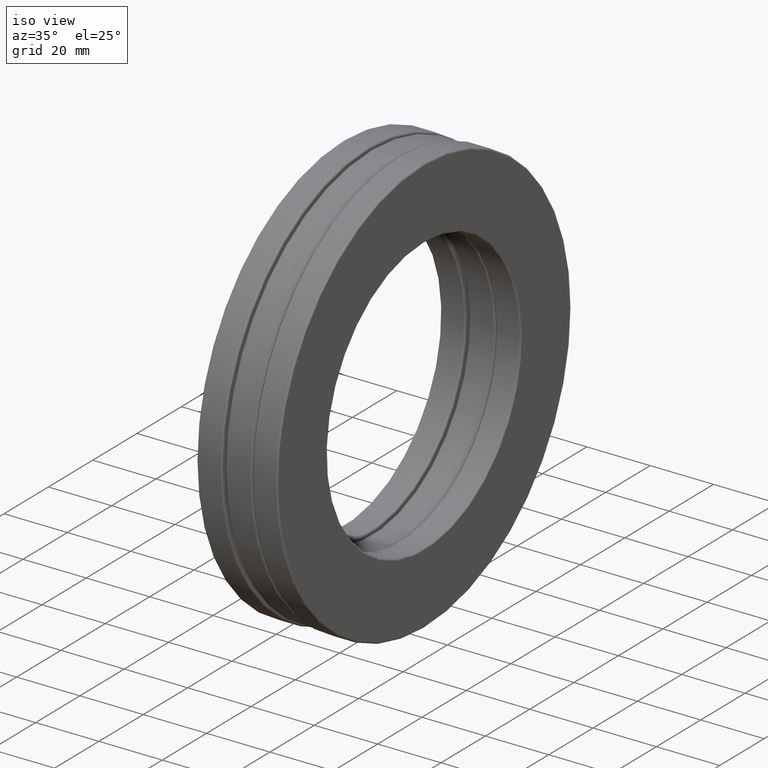
[diagram: clean part render]
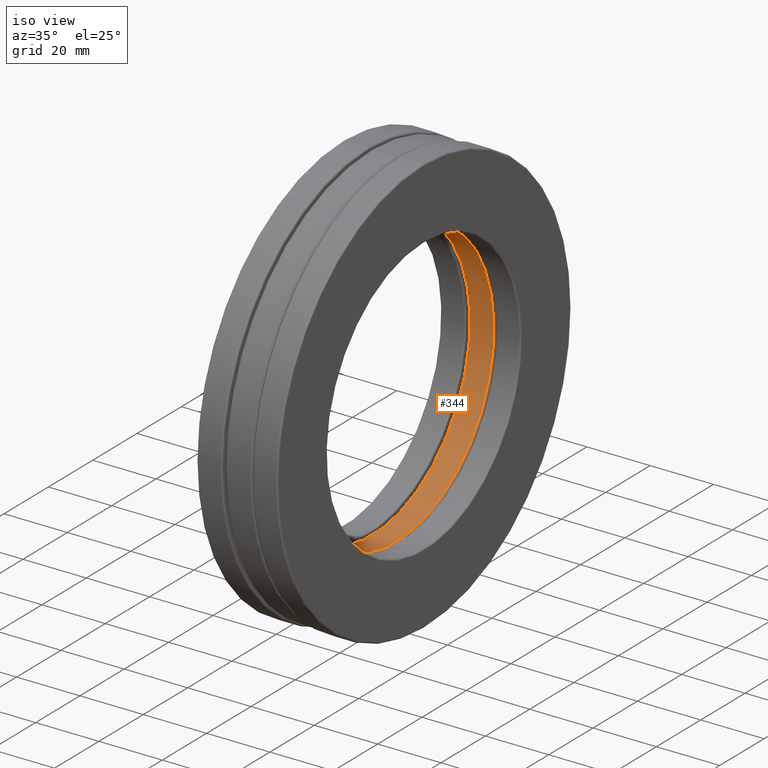
[diagram: same view with one face highlighted and labeled with its STEP entity id]
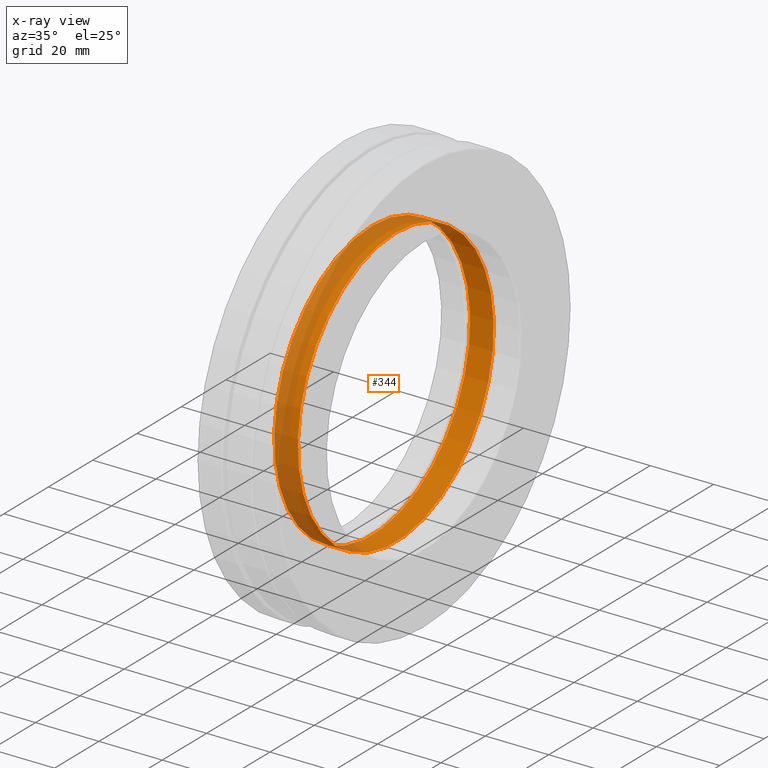
[diagram: x-ray of the same camera — body ghosted, the highlighted face saturated]
A machine part, iso view. The second image highlights one B-rep face of the part: STEP entity #344.
The next image is the same camera in x-ray: the body ghosted, the highlighted face saturated — about 36% of this face is hidden behind the body in this view.
In plain terms, the highlighted cylindrical surface (bore or boss wall) has radius 44.1643 mm, axis along (-1, -0, -0).
Its self-contained STEP definition (entity closure, byte-faithful):
#66 = CYLINDRICAL_SURFACE ( 'NONE', #1400, 1.738750000000000200 ) ;
#101 = CIRCLE ( 'NONE', #1258, 1.738750000000000200 ) ;
#235 = DIRECTION ( 'NONE',  ( 0.0000000000000000000, 0.0000000000000000000, 1.000000000000000000 ) ) ;
#344 = ADVANCED_FACE ( 'NONE', ( #1294, #993 ), #66, .F. ) ;
#358 = EDGE_CURVE ( 'NONE', #501, #501, #101, .T. ) ;
#363 = DIRECTION ( 'NONE',  ( -1.000000000000000000, -0.0000000000000000000, -0.0000000000000000000 ) ) ;
#477 = VERTEX_POINT ( 'NONE', #1262 ) ;
#501 = VERTEX_POINT ( 'NONE', #766 ) ;
#588 = ORIENTED_EDGE ( 'NONE', *, *, #1456, .F. ) ;
#702 = CARTESIAN_POINT ( 'NONE',  ( -0.1475000000000000800, 0.0000000000000000000, 0.0000000000000000000 ) ) ;
#717 = AXIS2_PLACEMENT_3D ( 'NONE', #775, #1007, #1339 ) ;
#766 = CARTESIAN_POINT ( 'NONE',  ( -0.1475000000000000800, 0.0000000000000000000, 1.738750000000000200 ) ) ;
#775 = CARTESIAN_POINT ( 'NONE',  ( 0.1475000000000001300, 0.0000000000000000000, 0.0000000000000000000 ) ) ;
#864 = CIRCLE ( 'NONE', #717, 1.738750000000000200 ) ;
#894 = ORIENTED_EDGE ( 'NONE', *, *, #358, .T. ) ;
#973 = EDGE_LOOP ( 'NONE', ( #588 ) ) ;
#977 = EDGE_LOOP ( 'NONE', ( #894 ) ) ;
#993 = FACE_OUTER_BOUND ( 'NONE', #977, .T. ) ;
#1007 = DIRECTION ( 'NONE',  ( -1.000000000000000000, -0.0000000000000000000, -0.0000000000000000000 ) ) ;
#1048 = DIRECTION ( 'NONE',  ( 0.0000000000000000000, 0.0000000000000000000, 1.000000000000000000 ) ) ;
#1148 = DIRECTION ( 'NONE',  ( -1.000000000000000000, -0.0000000000000000000, -0.0000000000000000000 ) ) ;
#1258 = AXIS2_PLACEMENT_3D ( 'NONE', #702, #363, #1048 ) ;
#1262 = CARTESIAN_POINT ( 'NONE',  ( 0.1475000000000001300, 0.0000000000000000000, 1.738750000000000200 ) ) ;
#1272 = CARTESIAN_POINT ( 'NONE',  ( 0.0000000000000000000, 0.0000000000000000000, 0.0000000000000000000 ) ) ;
#1294 = FACE_OUTER_BOUND ( 'NONE', #973, .T. ) ;
#1339 = DIRECTION ( 'NONE',  ( 0.0000000000000000000, 0.0000000000000000000, 1.000000000000000000 ) ) ;
#1400 = AXIS2_PLACEMENT_3D ( 'NONE', #1272, #1148, #235 ) ;
#1456 = EDGE_CURVE ( 'NONE', #477, #477, #864, .T. ) ;